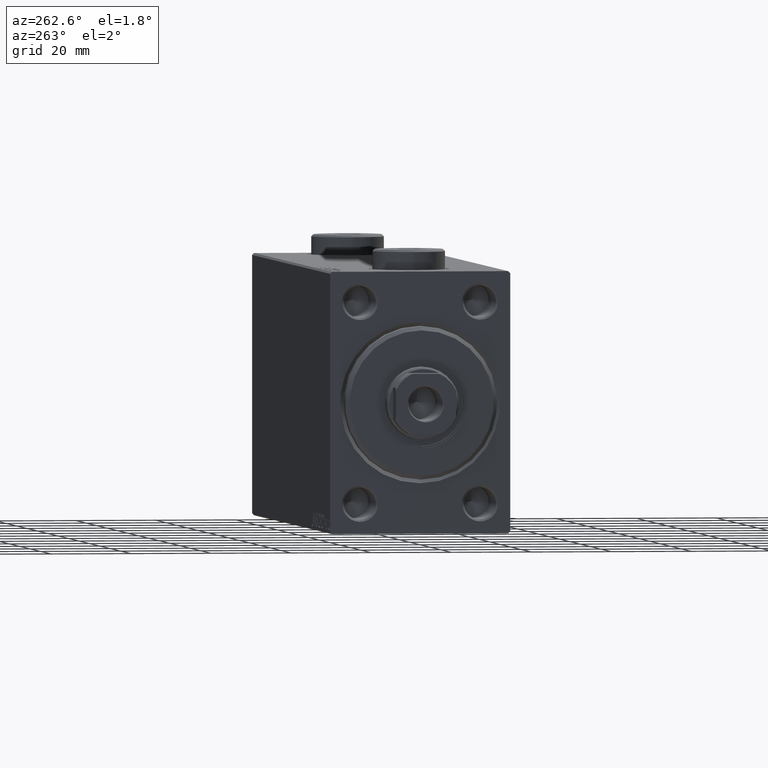
[diagram: clean part render]
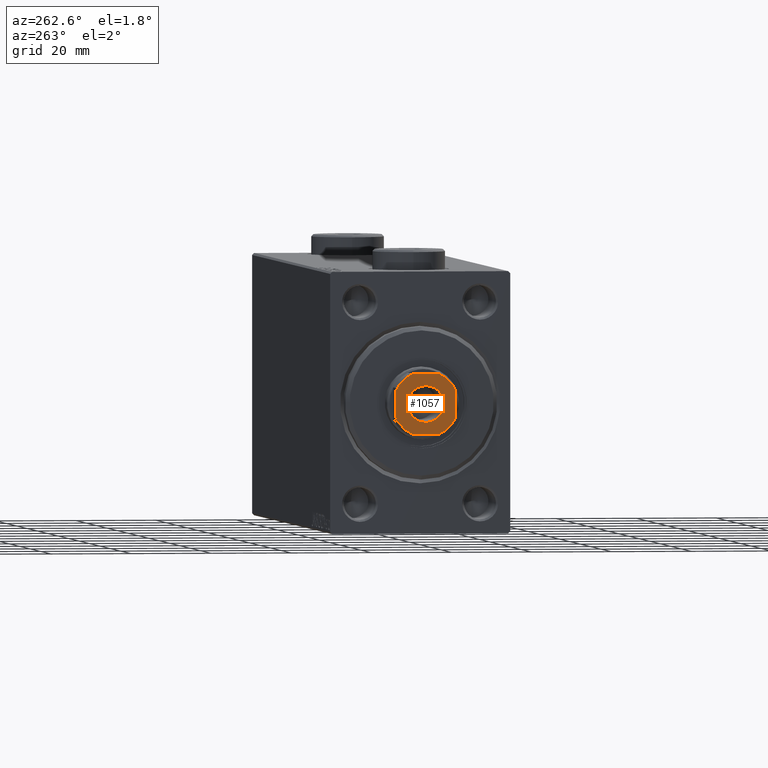
[diagram: same view with one face highlighted and labeled with its STEP entity id]
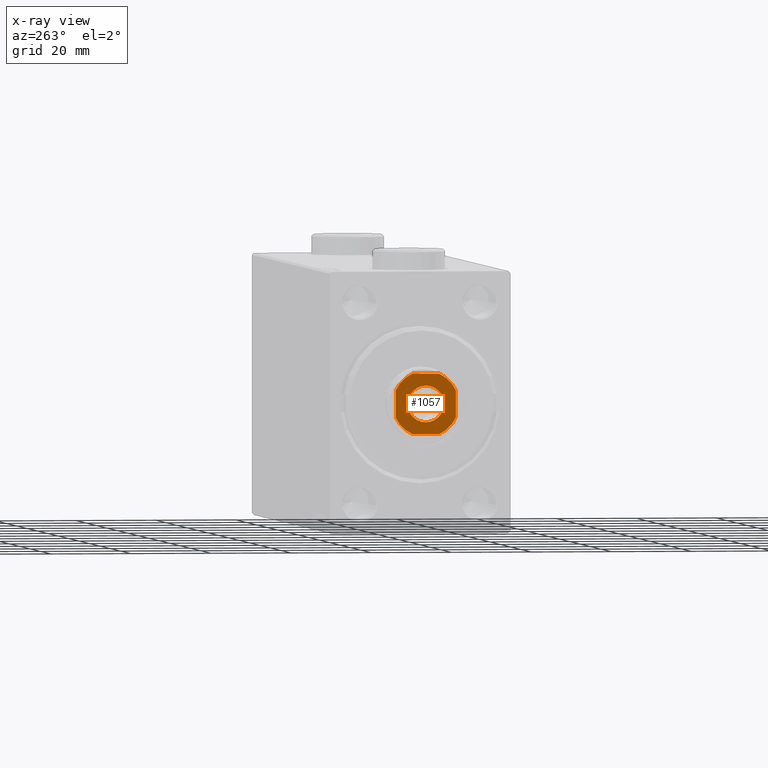
[diagram: x-ray of the same camera — body ghosted, the highlighted face saturated]
A machine part, auxiliary view. The second image highlights one B-rep face of the part: STEP entity #1057.
The next image is the same camera in x-ray: the body ghosted, the highlighted face saturated — about 0% of this face is hidden behind the body in this view.
In plain terms, the highlighted planar face has unit normal (-1, 0, 0).
Its self-contained STEP definition (entity closure, byte-faithful):
#1057 = ADVANCED_FACE ( 'NONE', ( #33193, #29279 ), #11533, .T. ) ;
#1151 = DIRECTION ( 'NONE',  ( -0.000000000000000000, 0.000000000000000000, 1.000000000000000000 ) ) ;
#1778 = EDGE_CURVE ( 'NONE', #9743, #25146, #10843, .T. ) ;
#2034 = AXIS2_PLACEMENT_3D ( 'NONE', #34658, #3083, #17132 ) ;
#2296 = VECTOR ( 'NONE', #23572, 1000.000000000000000 ) ;
#3083 = DIRECTION ( 'NONE',  ( -0.000000000000000000, 0.000000000000000000, 1.000000000000000000 ) ) ;
#3172 = AXIS2_PLACEMENT_3D ( 'NONE', #5118, #8592, #15018 ) ;
#3200 = ORIENTED_EDGE ( 'NONE', *, *, #34812, .T. ) ;
#3876 = DIRECTION ( 'NONE',  ( 1.000000000000000000, 0.000000000000000000, 0.000000000000000000 ) ) ;
#4087 = ORIENTED_EDGE ( 'NONE', *, *, #25857, .T. ) ;
#4512 = VECTOR ( 'NONE', #38041, 1000.000000000000000 ) ;
#5098 = CARTESIAN_POINT ( 'NONE',  ( -7.499999999999999112, -7.499999999999998224, 155.0000000000000284 ) ) ;
#5118 = CARTESIAN_POINT ( 'NONE',  ( 0.000000000000000000, 0.000000000000000000, 155.0000000000000284 ) ) ;
#5129 = CIRCLE ( 'NONE', #41193, 4.549999999999970512 ) ;
#5158 = ORIENTED_EDGE ( 'NONE', *, *, #1778, .T. ) ;
#5212 = CARTESIAN_POINT ( 'NONE',  ( 7.499999999999997335, 7.500000000000000888, 155.0000000000000284 ) ) ;
#5884 = DIRECTION ( 'NONE',  ( 0.000000000000000000, -0.000000000000000000, -1.000000000000000000 ) ) ;
#6907 = ORIENTED_EDGE ( 'NONE', *, *, #36836, .T. ) ;
#7899 = DIRECTION ( 'NONE',  ( 1.000000000000000000, 0.000000000000000000, 0.000000000000000000 ) ) ;
#8033 = ORIENTED_EDGE ( 'NONE', *, *, #31679, .T. ) ;
#8592 = DIRECTION ( 'NONE',  ( -0.000000000000000000, 0.000000000000000000, 1.000000000000000000 ) ) ;
#9018 = VERTEX_POINT ( 'NONE', #12552 ) ;
#9743 = VERTEX_POINT ( 'NONE', #33771 ) ;
#9751 = VERTEX_POINT ( 'NONE', #10471 ) ;
#10332 = CARTESIAN_POINT ( 'NONE',  ( 3.315116890850273723, 7.500000000000000888, 155.0000000000000284 ) ) ;
#10471 = CARTESIAN_POINT ( 'NONE',  ( -3.315116890850201781, -7.499999999999998224, 155.0000000000000284 ) ) ;
#10486 = CIRCLE ( 'NONE', #36256, 4.549999999999970512 ) ;
#10617 = CARTESIAN_POINT ( 'NONE',  ( 4.549999999999970512, 0.000000000000000000, 155.0000000000000284 ) ) ;
#10843 = CIRCLE ( 'NONE', #2034, 8.200000000000045475 ) ;
#11513 = CARTESIAN_POINT ( 'NONE',  ( -7.500000000000000888, 3.315116890850214659, 155.0000000000000284 ) ) ;
#11533 = PLANE ( 'NONE',  #17534 ) ;
#12552 = CARTESIAN_POINT ( 'NONE',  ( -3.315116890850214215, 7.500000000000000888, 155.0000000000000284 ) ) ;
#13007 = VERTEX_POINT ( 'NONE', #11513 ) ;
#13635 = LINE ( 'NONE', #5212, #2296 ) ;
#14698 = ORIENTED_EDGE ( 'NONE', *, *, #26376, .T. ) ;
#14993 = VERTEX_POINT ( 'NONE', #17724 ) ;
#15018 = DIRECTION ( 'NONE',  ( 1.000000000000000000, 0.000000000000000000, 0.000000000000000000 ) ) ;
#15179 = DIRECTION ( 'NONE',  ( 1.000000000000000000, 0.000000000000000000, 0.000000000000000000 ) ) ;
#15498 = CARTESIAN_POINT ( 'NONE',  ( -7.499999999999999112, -3.315116890850197784, 155.0000000000000284 ) ) ;
#15566 = AXIS2_PLACEMENT_3D ( 'NONE', #43786, #1151, #15179 ) ;
#16295 = EDGE_CURVE ( 'NONE', #37686, #9018, #16814, .T. ) ;
#16595 = CARTESIAN_POINT ( 'NONE',  ( -7.500000000000001776, 7.500000000000001776, 155.0000000000000284 ) ) ;
#16814 = LINE ( 'NONE', #16595, #4512 ) ;
#17063 = CARTESIAN_POINT ( 'NONE',  ( 0.000000000000000000, 0.000000000000000000, 155.0000000000000284 ) ) ;
#17132 = DIRECTION ( 'NONE',  ( 1.000000000000000000, 0.000000000000000000, 0.000000000000000000 ) ) ;
#17318 = ORIENTED_EDGE ( 'NONE', *, *, #35512, .T. ) ;
#17534 = AXIS2_PLACEMENT_3D ( 'NONE', #43577, #43343, #18889 ) ;
#17724 = CARTESIAN_POINT ( 'NONE',  ( 7.499999999999998224, 3.315116890850279052, 155.0000000000000284 ) ) ;
#18501 = CIRCLE ( 'NONE', #15566, 8.200000000000024158 ) ;
#18889 = DIRECTION ( 'NONE',  ( 1.000000000000000000, 0.000000000000000000, 0.000000000000000000 ) ) ;
#20992 = EDGE_CURVE ( 'NONE', #14993, #37686, #35569, .T. ) ;
#22021 = VECTOR ( 'NONE', #26305, 1000.000000000000000 ) ;
#23394 = CARTESIAN_POINT ( 'NONE',  ( 0.000000000000000000, 0.000000000000000000, 155.0000000000000284 ) ) ;
#23535 = DIRECTION ( 'NONE',  ( -0.000000000000000000, 0.000000000000000000, 1.000000000000000000 ) ) ;
#23572 = DIRECTION ( 'NONE',  ( -1.156482317317871478E-16, 1.000000000000000000, -0.000000000000000000 ) ) ;
#24990 = DIRECTION ( 'NONE',  ( 1.734723475976807094E-16, -1.000000000000000000, 0.000000000000000000 ) ) ;
#25146 = VERTEX_POINT ( 'NONE', #27535 ) ;
#25322 = ORIENTED_EDGE ( 'NONE', *, *, #20992, .T. ) ;
#25857 = EDGE_CURVE ( 'NONE', #42456, #42793, #5129, .T. ) ;
#26305 = DIRECTION ( 'NONE',  ( 1.000000000000000000, 0.000000000000000000, 0.000000000000000000 ) ) ;
#26376 = EDGE_CURVE ( 'NONE', #9751, #9743, #29983, .T. ) ;
#27535 = CARTESIAN_POINT ( 'NONE',  ( 7.499999999999998224, -3.315116890850271059, 155.0000000000000284 ) ) ;
#27873 = EDGE_LOOP ( 'NONE', ( #4087, #3200 ) ) ;
#28862 = DIRECTION ( 'NONE',  ( 0.000000000000000000, -0.000000000000000000, -1.000000000000000000 ) ) ;
#29279 = FACE_OUTER_BOUND ( 'NONE', #38705, .T. ) ;
#29547 = VERTEX_POINT ( 'NONE', #15498 ) ;
#29983 = LINE ( 'NONE', #5098, #22021 ) ;
#30333 = EDGE_CURVE ( 'NONE', #25146, #14993, #13635, .T. ) ;
#31679 = EDGE_CURVE ( 'NONE', #9018, #13007, #18501, .T. ) ;
#33193 = FACE_BOUND ( 'NONE', #27873, .T. ) ;
#33556 = DIRECTION ( 'NONE',  ( 1.000000000000000000, 0.000000000000000000, 0.000000000000000000 ) ) ;
#33771 = CARTESIAN_POINT ( 'NONE',  ( 3.315116890850273723, -7.499999999999996447, 155.0000000000000284 ) ) ;
#34658 = CARTESIAN_POINT ( 'NONE',  ( 0.000000000000000000, 0.000000000000000000, 155.0000000000000284 ) ) ;
#34812 = EDGE_CURVE ( 'NONE', #42793, #42456, #10486, .T. ) ;
#34816 = AXIS2_PLACEMENT_3D ( 'NONE', #17063, #23535, #3876 ) ;
#34908 = ORIENTED_EDGE ( 'NONE', *, *, #30333, .T. ) ;
#35512 = EDGE_CURVE ( 'NONE', #29547, #9751, #45131, .T. ) ;
#35569 = CIRCLE ( 'NONE', #34816, 8.200000000000047251 ) ;
#36256 = AXIS2_PLACEMENT_3D ( 'NONE', #36921, #28862, #7899 ) ;
#36836 = EDGE_CURVE ( 'NONE', #13007, #29547, #42993, .T. ) ;
#36921 = CARTESIAN_POINT ( 'NONE',  ( 0.000000000000000000, 0.000000000000000000, 155.0000000000000284 ) ) ;
#37686 = VERTEX_POINT ( 'NONE', #10332 ) ;
#38041 = DIRECTION ( 'NONE',  ( -1.000000000000000000, 5.782411586589357392E-17, -0.000000000000000000 ) ) ;
#38705 = EDGE_LOOP ( 'NONE', ( #34908, #25322, #44202, #8033, #6907, #17318, #14698, #5158 ) ) ;
#39530 = CARTESIAN_POINT ( 'NONE',  ( -7.500000000000001776, 7.500000000000001776, 155.0000000000000284 ) ) ;
#41193 = AXIS2_PLACEMENT_3D ( 'NONE', #23394, #5884, #33556 ) ;
#42456 = VERTEX_POINT ( 'NONE', #10617 ) ;
#42540 = CARTESIAN_POINT ( 'NONE',  ( -4.549999999999970512, 5.572142936120421828E-16, 155.0000000000000284 ) ) ;
#42793 = VERTEX_POINT ( 'NONE', #42540 ) ;
#42993 = LINE ( 'NONE', #39530, #43700 ) ;
#43343 = DIRECTION ( 'NONE',  ( -0.000000000000000000, 0.000000000000000000, 1.000000000000000000 ) ) ;
#43577 = CARTESIAN_POINT ( 'NONE',  ( 0.000000000000000000, 0.000000000000000000, 155.0000000000000284 ) ) ;
#43700 = VECTOR ( 'NONE', #24990, 1000.000000000000000 ) ;
#43786 = CARTESIAN_POINT ( 'NONE',  ( 0.000000000000000000, 0.000000000000000000, 155.0000000000000284 ) ) ;
#44202 = ORIENTED_EDGE ( 'NONE', *, *, #16295, .T. ) ;
#45131 = CIRCLE ( 'NONE', #3172, 8.200000000000017053 ) ;